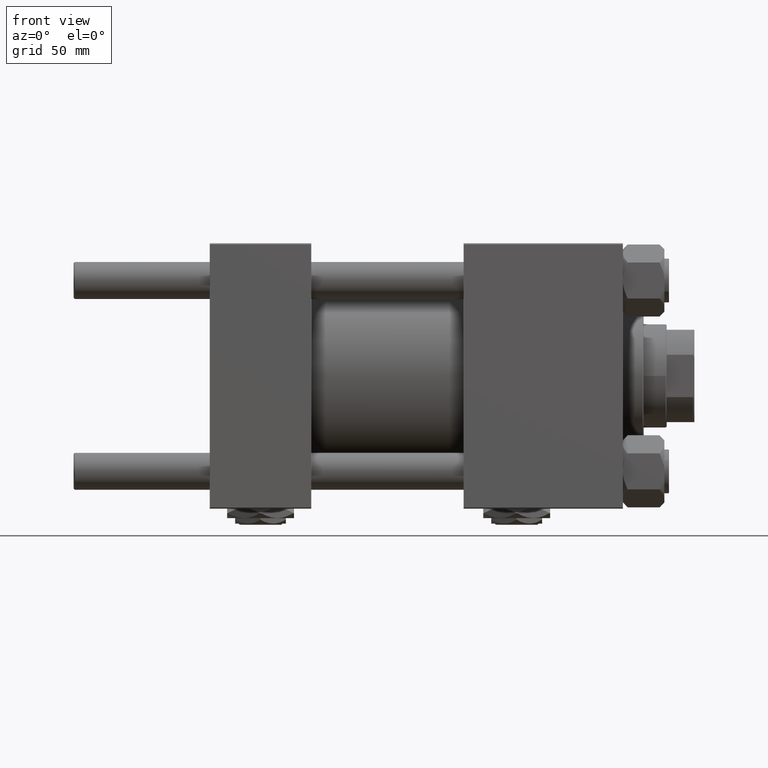
[diagram: clean part render]
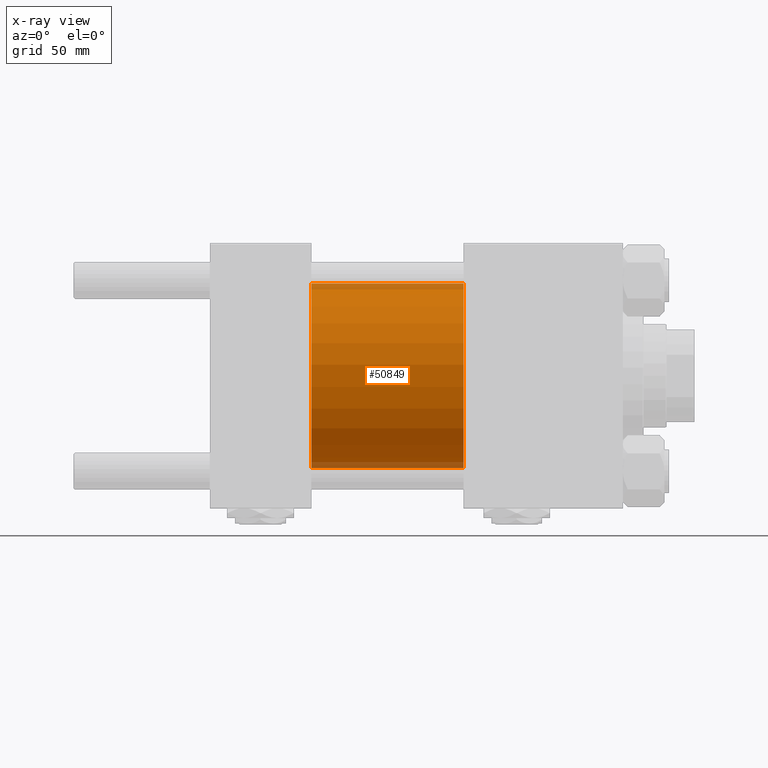
[diagram: x-ray — body ghosted, one internal face saturated and labeled with its STEP entity id]
A machine part, front view, then the same camera in x-ray: the body is ghosted and one INTERNAL B-rep face — a face not visible from any outside direction — is saturated and labeled: STEP entity #50849.
In plain terms, the highlighted cylindrical surface (partial cylindrical patch) has radius 40 mm, axis along (-1, -0, -0).
Its self-contained STEP definition (entity closure, byte-faithful):
#480 = CARTESIAN_POINT ( 'NONE',  ( 44.00000000000000000, 4.898587196589413026E-15, -40.00000000000000000 ) ) ;
#2168 = VERTEX_POINT ( 'NONE', #15806 ) ;
#3017 = CARTESIAN_POINT ( 'NONE',  ( 110.0000000000000000, 4.898587196589413026E-15, -40.00000000000000000 ) ) ;
#3800 = ORIENTED_EDGE ( 'NONE', *, *, #40066, .F. ) ;
#4100 = CARTESIAN_POINT ( 'NONE',  ( 110.0000000000000000, 4.898587196589413026E-15, -40.00000000000000000 ) ) ;
#5430 = AXIS2_PLACEMENT_3D ( 'NONE', #37741, #37219, #8663 ) ;
#8663 = DIRECTION ( 'NONE',  ( 0.000000000000000000, 0.000000000000000000, -1.000000000000000000 ) ) ;
#11097 = CARTESIAN_POINT ( 'NONE',  ( 110.0000000000000000, 0.000000000000000000, 0.000000000000000000 ) ) ;
#11907 = DIRECTION ( 'NONE',  ( 0.000000000000000000, 0.000000000000000000, 1.000000000000000000 ) ) ;
#13975 = ORIENTED_EDGE ( 'NONE', *, *, #21023, .T. ) ;
#15806 = CARTESIAN_POINT ( 'NONE',  ( 110.0000000000000000, 0.000000000000000000, 40.00000000000000000 ) ) ;
#17792 = VERTEX_POINT ( 'NONE', #23508 ) ;
#19400 = VERTEX_POINT ( 'NONE', #4100 ) ;
#21023 = EDGE_CURVE ( 'NONE', #2168, #19400, #29149, .T. ) ;
#22658 = VECTOR ( 'NONE', #40352, 1000.000000000000000 ) ;
#23508 = CARTESIAN_POINT ( 'NONE',  ( 44.00000000000000000, 0.000000000000000000, 40.00000000000000000 ) ) ;
#27808 = ORIENTED_EDGE ( 'NONE', *, *, #28889, .F. ) ;
#28456 = LINE ( 'NONE', #36395, #22658 ) ;
#28889 = EDGE_CURVE ( 'NONE', #17792, #31570, #51838, .T. ) ;
#29149 = CIRCLE ( 'NONE', #39280, 40.00000000000000000 ) ;
#30071 = CARTESIAN_POINT ( 'NONE',  ( 110.0000000000000000, 0.000000000000000000, 0.000000000000000000 ) ) ;
#30274 = EDGE_CURVE ( 'NONE', #19400, #31570, #44508, .T. ) ;
#31570 = VERTEX_POINT ( 'NONE', #480 ) ;
#34065 = EDGE_LOOP ( 'NONE', ( #13975, #46093, #27808, #3800 ) ) ;
#36395 = CARTESIAN_POINT ( 'NONE',  ( 110.0000000000000000, 0.000000000000000000, 40.00000000000000000 ) ) ;
#37219 = DIRECTION ( 'NONE',  ( 1.000000000000000000, 0.000000000000000000, 0.000000000000000000 ) ) ;
#37741 = CARTESIAN_POINT ( 'NONE',  ( 44.00000000000000000, 0.000000000000000000, 0.000000000000000000 ) ) ;
#38074 = DIRECTION ( 'NONE',  ( -1.000000000000000000, -0.000000000000000000, -0.000000000000000000 ) ) ;
#39280 = AXIS2_PLACEMENT_3D ( 'NONE', #30071, #46195, #42221 ) ;
#40066 = EDGE_CURVE ( 'NONE', #2168, #17792, #28456, .T. ) ;
#40352 = DIRECTION ( 'NONE',  ( -1.000000000000000000, -0.000000000000000000, -0.000000000000000000 ) ) ;
#42221 = DIRECTION ( 'NONE',  ( 0.000000000000000000, 0.000000000000000000, -1.000000000000000000 ) ) ;
#43610 = CYLINDRICAL_SURFACE ( 'NONE', #49218, 40.00000000000000000 ) ;
#44508 = LINE ( 'NONE', #3017, #51881 ) ;
#46093 = ORIENTED_EDGE ( 'NONE', *, *, #30274, .T. ) ;
#46195 = DIRECTION ( 'NONE',  ( 1.000000000000000000, 0.000000000000000000, 0.000000000000000000 ) ) ;
#47858 = DIRECTION ( 'NONE',  ( -1.000000000000000000, -0.000000000000000000, -0.000000000000000000 ) ) ;
#48117 = FACE_OUTER_BOUND ( 'NONE', #34065, .T. ) ;
#49218 = AXIS2_PLACEMENT_3D ( 'NONE', #11097, #47858, #11907 ) ;
#50849 = ADVANCED_FACE ( 'NONE', ( #48117 ), #43610, .F. ) ;
#51838 = CIRCLE ( 'NONE', #5430, 40.00000000000000000 ) ;
#51881 = VECTOR ( 'NONE', #38074, 1000.000000000000000 ) ;